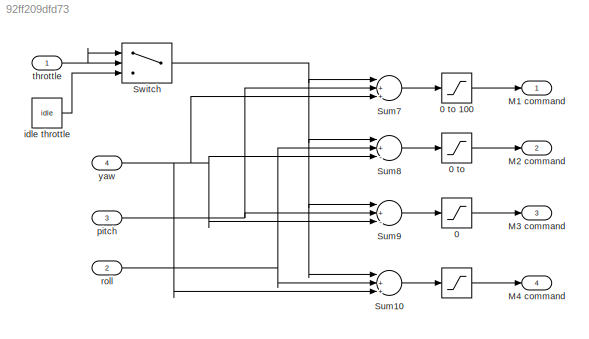
MODEL slx_92ff209dfd73
KIND model
CONFIG AbsTol = auto
CONFIG EnableMultiTasking = off
CONFIG FixedStep = interval
CONFIG MaxStep = auto
CONFIG MinStep = auto
CONFIG RelTol = 1e-3
CONFIG SampleTimeConstraint = Unconstrained
CONFIG Solver = FixedStepAuto
CONFIG SolverName = FixedStepAuto
CONFIG StartTime = 0.0
CONFIG StopTime = 10.0
BLOCK [Saturate]  
  InputPortMap = u0
  LowerLimit = 0
  Ports = [1, 1]
  UpperLimit = 100
BLOCK [Saturate] 0  
  InputPortMap = u0
  LowerLimit = 0
  Ports = [1, 1]
  UpperLimit = 100
BLOCK [Saturate] 0 to 
  InputPortMap = u0
  LowerLimit = 0
  Ports = [1, 1]
  UpperLimit = 100
BLOCK [Saturate] 0 to 100
  InputPortMap = u0
  LowerLimit = 0
  Ports = [1, 1]
  UpperLimit = 100
BLOCK [Outport] M1 command
  IconDisplay = Port number
BLOCK [Outport] M2 command
  IconDisplay = Port number
  Port = 2
BLOCK [Outport] M3 command
  IconDisplay = Port number
  Port = 3
BLOCK [Outport] M4 command
  IconDisplay = Port number
  Port = 4
BLOCK [Sum] Sum10
  InputSameDT = off
  Inputs = |+++
  OutDataTypeStr = Inherit: Inherit via internal rule
  Ports = [3, 1]
  SaturateOnIntegerOverflow = off
BLOCK [Sum] Sum7
  InputSameDT = off
  Inputs = |++-
  OutDataTypeStr = Inherit: Inherit via internal rule
  Ports = [3, 1]
  SaturateOnIntegerOverflow = off
BLOCK [Sum] Sum8
  InputSameDT = off
  Inputs = |+-+
  OutDataTypeStr = Inherit: Inherit via internal rule
  Ports = [3, 1]
  SaturateOnIntegerOverflow = off
BLOCK [Sum] Sum9
  InputSameDT = off
  Inputs = |+--
  OutDataTypeStr = Inherit: Inherit via internal rule
  Ports = [3, 1]
  SaturateOnIntegerOverflow = off
BLOCK [Switch] Switch
  Criteria = u2 > Threshold
  InputSameDT = off
  SaturateOnIntegerOverflow = off
  Threshold = idle
BLOCK [Constant] idle throttle
  Value = idle
BLOCK [Inport] pitch
  IconDisplay = Port number
  Port = 3
BLOCK [Inport] roll
  IconDisplay = Port number
  Port = 2
BLOCK [Inport] throttle
  IconDisplay = Port number
BLOCK [Inport] yaw
  IconDisplay = Port number
  Port = 4
LINE  :1 -> M4 command:1
LINE 0  :1 -> M3 command:1
LINE 0 to 100:1 -> M1 command:1
LINE 0 to :1 -> M2 command:1
LINE Sum10:1 ->  :1
LINE Sum7:1 -> 0 to 100:1
LINE Sum8:1 -> 0 to :1
LINE Sum9:1 -> 0  :1
NET Switch:1 -> Sum10:1, Sum7:1, Sum8:1, Sum9:1
LINE idle throttle:1 -> Switch:3
NET pitch:1 -> Sum7:2, Sum9:2
NET roll:1 -> Sum10:2, Sum8:2
NET throttle:1 -> Switch:1, Switch:2
NET yaw:1 -> Sum10:3, Sum7:3, Sum8:3, Sum9:3
note: NET lines group one-source signal fan-out (src -> all destinations, sorted); 1:1 wires keep LINE
